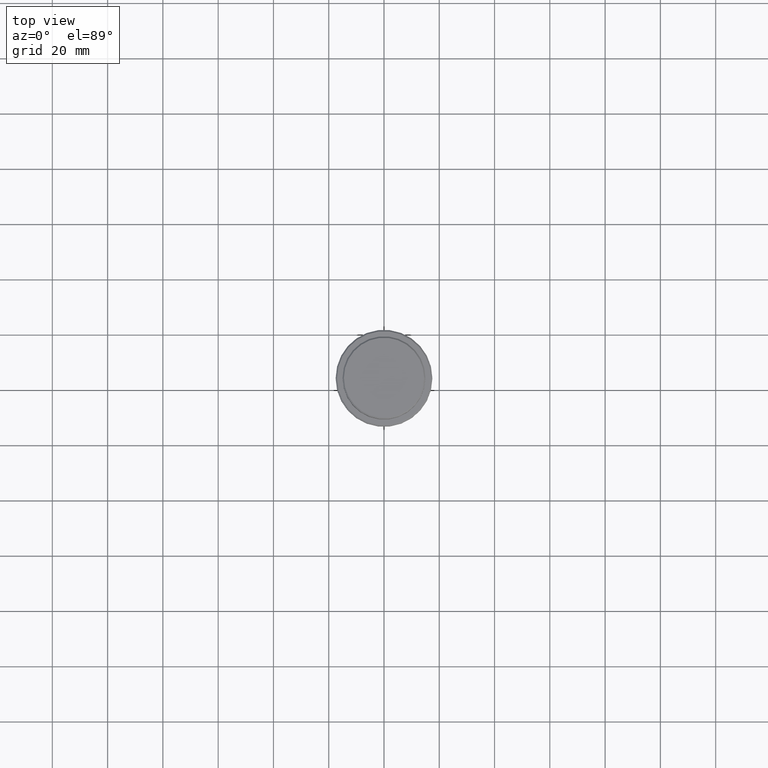
[diagram: clean part render]
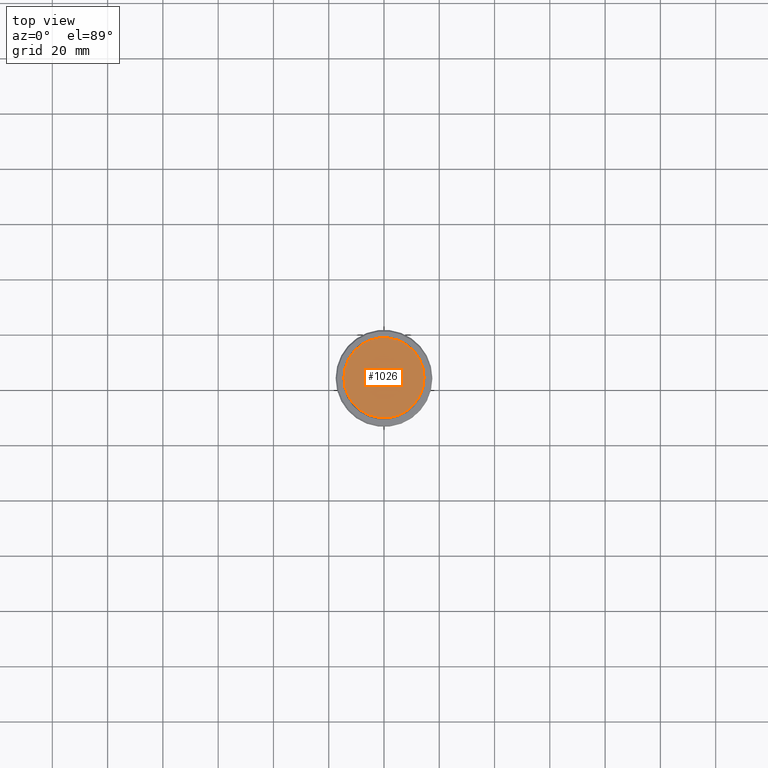
[diagram: same view with one face highlighted and labeled with its STEP entity id]
A machine part, top view. The second image highlights one B-rep face of the part: STEP entity #1026.
In plain terms, the highlighted planar face has unit normal (0, -0, 1).
Its self-contained STEP definition (entity closure, byte-faithful):
#7 = ORIENTED_EDGE ( 'NONE', *, *, #1157, .T. ) ;
#15 = ORIENTED_EDGE ( 'NONE', *, *, #1259, .T. ) ;
#121 = DIRECTION ( 'NONE',  ( 1.000000000000000000, 0.000000000000000000, 0.000000000000000000 ) ) ;
#180 = AXIS2_PLACEMENT_3D ( 'NONE', #563, #1117, #1304 ) ;
#222 = AXIS2_PLACEMENT_3D ( 'NONE', #486, #1350, #1030 ) ;
#234 = VERTEX_POINT ( 'NONE', #1204 ) ;
#486 = CARTESIAN_POINT ( 'NONE',  ( 0.000000000000000000, 0.000000000000000000, 0.000000000000000000 ) ) ;
#490 = EDGE_LOOP ( 'NONE', ( #15, #7 ) ) ;
#563 = CARTESIAN_POINT ( 'NONE',  ( 0.000000000000000000, 0.000000000000000000, 0.000000000000000000 ) ) ;
#633 = CIRCLE ( 'NONE', #1139, 14.49999999999998401 ) ;
#683 = CARTESIAN_POINT ( 'NONE',  ( -14.49999999999998401, 0.000000000000000000, 0.000000000000000000 ) ) ;
#686 = VERTEX_POINT ( 'NONE', #683 ) ;
#833 = CIRCLE ( 'NONE', #222, 14.49999999999998401 ) ;
#885 = DIRECTION ( 'NONE',  ( -0.000000000000000000, -0.000000000000000000, 1.000000000000000000 ) ) ;
#1026 = ADVANCED_FACE ( 'NONE', ( #1102 ), #1416, .T. ) ;
#1030 = DIRECTION ( 'NONE',  ( 1.000000000000000000, 0.000000000000000000, 0.000000000000000000 ) ) ;
#1102 = FACE_OUTER_BOUND ( 'NONE', #490, .T. ) ;
#1117 = DIRECTION ( 'NONE',  ( 0.000000000000000000, -0.000000000000000000, 1.000000000000000000 ) ) ;
#1139 = AXIS2_PLACEMENT_3D ( 'NONE', #1222, #885, #121 ) ;
#1157 = EDGE_CURVE ( 'NONE', #234, #686, #633, .T. ) ;
#1204 = CARTESIAN_POINT ( 'NONE',  ( 14.49999999999998401, 1.806354028742345013E-15, 0.000000000000000000 ) ) ;
#1222 = CARTESIAN_POINT ( 'NONE',  ( 0.000000000000000000, 0.000000000000000000, 0.000000000000000000 ) ) ;
#1259 = EDGE_CURVE ( 'NONE', #686, #234, #833, .T. ) ;
#1304 = DIRECTION ( 'NONE',  ( 1.000000000000000000, 0.000000000000000000, 0.000000000000000000 ) ) ;
#1350 = DIRECTION ( 'NONE',  ( -0.000000000000000000, -0.000000000000000000, 1.000000000000000000 ) ) ;
#1416 = PLANE ( 'NONE',  #180 ) ;